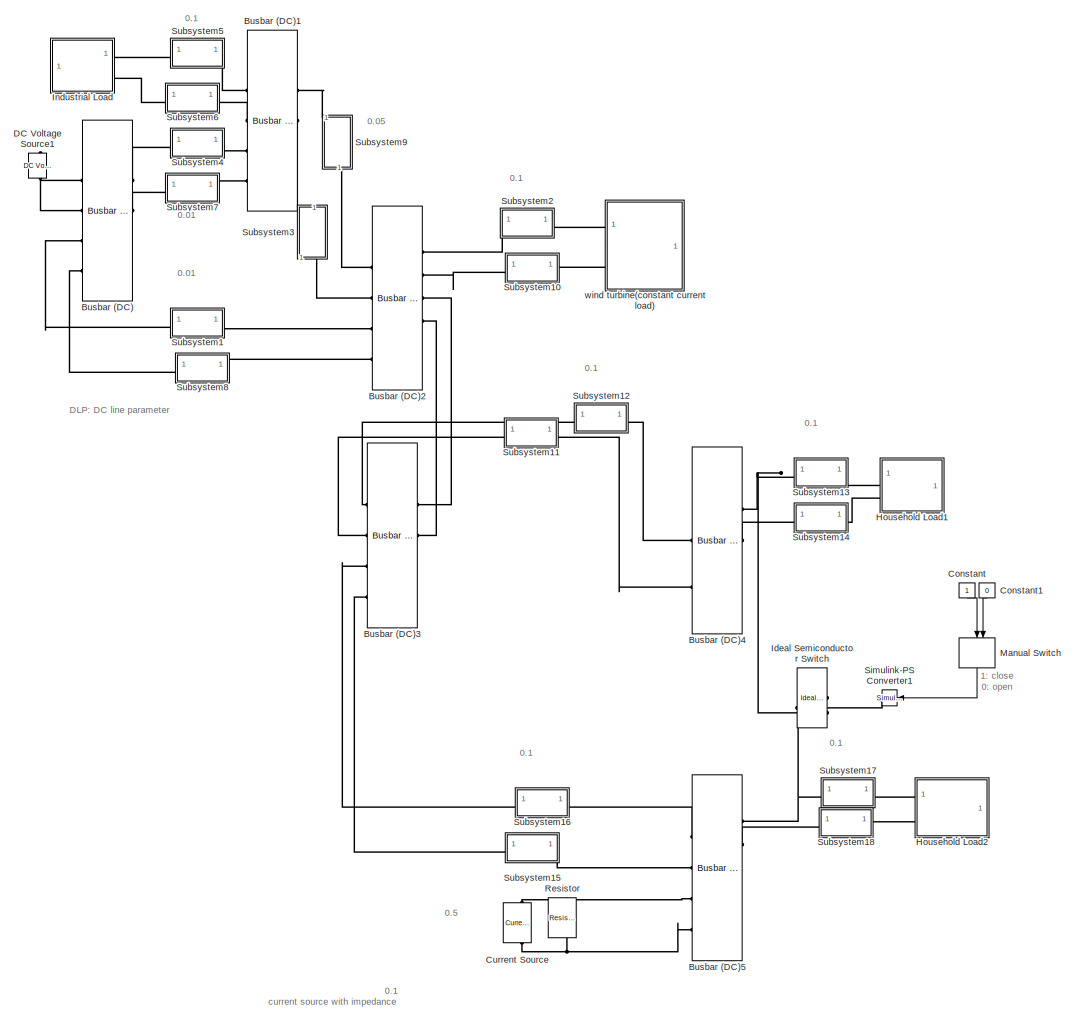
[diagram: root canvas - part 1/2, center side, full height]
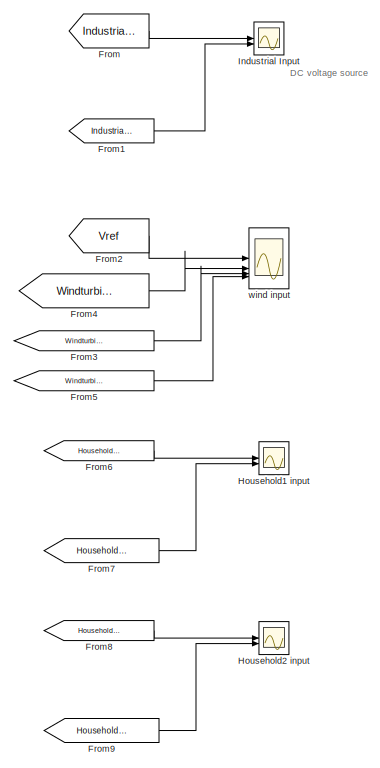
[diagram: root canvas - part 2/2, left side, full height]
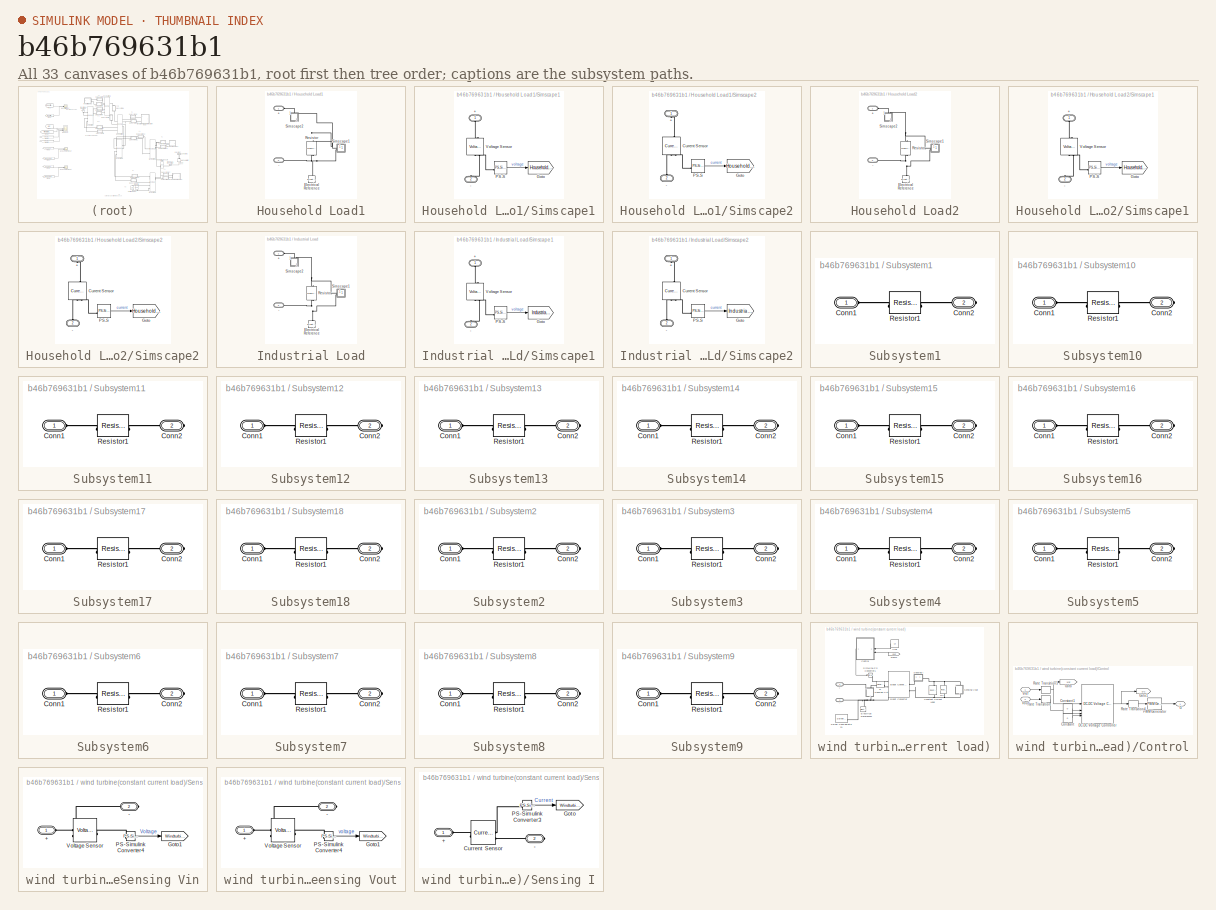
[diagram: thumbnail index - all 33 canvases of the model, root first then tree order]
MODEL slx_b46b769631b1
KIND model
CONFIG AbsTol = auto
CONFIG EnableMultiTasking = off
CONFIG FixedStep = auto
CONFIG MaxStep = auto
CONFIG MinStep = auto
CONFIG RelTol = 1e-3
CONFIG SampleTimeConstraint = Unconstrained
CONFIG SolverName = VariableStepAuto
CONFIG StartTime = 0.0
CONFIG StopTime = 10.0
BLOCK [Reference] Busbar (DC)  REF=ee_lib/Connectors &
References/Busbar (DC)
  SourceBlock = ee_lib/Connectors &\nReferences/Busbar (DC)
  SourceType = Busbar (DC)
BLOCK [Reference] Busbar (DC)1  REF=ee_lib/Connectors &
References/Busbar (DC)
  SourceBlock = ee_lib/Connectors &\nReferences/Busbar (DC)
  SourceType = Busbar (DC)
BLOCK [Reference] Busbar (DC)2  REF=ee_lib/Connectors &
References/Busbar (DC)
  SourceBlock = ee_lib/Connectors &\nReferences/Busbar (DC)
  SourceType = Busbar (DC)
BLOCK [Reference] Busbar (DC)3  REF=ee_lib/Connectors &
References/Busbar (DC)
  SourceBlock = ee_lib/Connectors &\nReferences/Busbar (DC)
  SourceType = Busbar (DC)
BLOCK [Reference] Busbar (DC)4  REF=ee_lib/Connectors &
References/Busbar (DC)
  SourceBlock = ee_lib/Connectors &\nReferences/Busbar (DC)
  SourceType = Busbar (DC)
BLOCK [Reference] Busbar (DC)5  REF=ee_lib/Connectors &
References/Busbar (DC)
  SourceBlock = ee_lib/Connectors &\nReferences/Busbar (DC)
  SourceType = Busbar (DC)
BLOCK [Constant] Constant
  NameLocation = left
BLOCK [Constant] Constant1
  NameLocation = left
  Value = 0
BLOCK [Reference] Current Source  REF=ee_lib/Sources/Current Source
  NameLocation = right
  SourceBlock = ee_lib/Sources/Current Source
  SourceType = Current Source
BLOCK [Reference] DC Voltage Source1  REF=ee_lib/Additional
Components/SPICE Sources/DC Voltage Source
  NameLocation = right
  SourceBlock = ee_lib/Additional\nComponents/SPICE Sources/DC Voltage Source
  SourceType = DC Voltage Source
BLOCK [From] From
  GotoTag = IndustrialVoltage
  IconDisplay = Signal name
  TagVisibility = global
BLOCK [From] From1
  GotoTag = IndustrialCurrent
  IconDisplay = Signal name
  TagVisibility = global
BLOCK [From] From2
  GotoTag = Vref
  IconDisplay = Signal name
  TagVisibility = global
BLOCK [From] From3
  GotoTag = WindturbineVoltage
  IconDisplay = Signal name
  TagVisibility = global
BLOCK [From] From4
  GotoTag = WindturbineInputVoltage
  IconDisplay = Signal name
  TagVisibility = global
BLOCK [From] From5
  GotoTag = WindturbineCurrent
  IconDisplay = Signal name
  TagVisibility = global
BLOCK [From] From6
  GotoTag = Household1Voltage
  IconDisplay = Signal name
  TagVisibility = global
BLOCK [From] From7
  GotoTag = Household1Current
  IconDisplay = Signal name
  TagVisibility = global
BLOCK [From] From8
  GotoTag = Household2Voltage
  IconDisplay = Signal name
  TagVisibility = global
BLOCK [From] From9
  GotoTag = Household2Current
  IconDisplay = Signal name
  TagVisibility = global
BLOCK [SubSystem] Household Load1
BLOCK [PMIOPort] Household Load1/+
  Side = Left
BLOCK [PMIOPort] Household Load1/-
  Port = 2
  Side = Left
BLOCK [Reference] Household Load1/Electrical Reference  REF=fl_lib/Electrical/Electrical Elements/Electrical Reference
  NameLocation = right
  SourceBlock = fl_lib/Electrical/Electrical Elements/Electrical Reference
  SourceType = Electrical Reference
BLOCK [Reference] Household Load1/Resistor  REF=fl_lib/Electrical/Electrical Elements/Resistor
  NameLocation = left
  SourceBlock = fl_lib/Electrical/Electrical Elements/Resistor
  SourceType = Resistor
BLOCK [SubSystem] Household Load1/Simscape1
BLOCK [PMIOPort] Household Load1/Simscape1/+
  NameLocation = right
  Side = Left
BLOCK [PMIOPort] Household Load1/Simscape1/-
  NameLocation = left
  Port = 2
  Side = Left
BLOCK [Goto] Household Load1/Simscape1/Goto
  GotoTag = Household1Voltage
  IconDisplay = Signal name
  TagVisibility = global
BLOCK [Reference] Household Load1/Simscape1/PS-S  REF=nesl_utility/PS-Simulink
Converter
  SourceBlock = nesl_utility/PS-Simulink\nConverter
  SourceType = PS-Simulink\nConverter
BLOCK [Reference] Household Load1/Simscape1/Voltage Sensor  REF=fl_lib/Electrical/Electrical Sensors/Voltage Sensor
  NameLocation = right
  SourceBlock = fl_lib/Electrical/Electrical Sensors/Voltage Sensor
  SourceType = Voltage Sensor
BLOCK [SubSystem] Household Load1/Simscape2
  NameLocation = left
BLOCK [PMIOPort] Household Load1/Simscape2/+
  NameLocation = right
  Side = Left
BLOCK [PMIOPort] Household Load1/Simscape2/-
  NameLocation = left
  Port = 2
  Side = Left
BLOCK [Reference] Household Load1/Simscape2/Current Sensor  REF=fl_lib/Electrical/Electrical Sensors/Current Sensor
  NameLocation = left
  SourceBlock = fl_lib/Electrical/Electrical Sensors/Current Sensor
  SourceType = Current Sensor
BLOCK [Goto] Household Load1/Simscape2/Goto
  GotoTag = Household1Current
  IconDisplay = Signal name
  TagVisibility = global
BLOCK [Reference] Household Load1/Simscape2/PS-S  REF=nesl_utility/PS-Simulink
Converter
  SourceBlock = nesl_utility/PS-Simulink\nConverter
  SourceType = PS-Simulink\nConverter
BLOCK [SubSystem] Household Load2
BLOCK [PMIOPort] Household Load2/+
  Side = Left
BLOCK [PMIOPort] Household Load2/-
  Port = 2
  Side = Left
BLOCK [Reference] Household Load2/Electrical Reference  REF=fl_lib/Electrical/Electrical Elements/Electrical Reference
  NameLocation = right
  SourceBlock = fl_lib/Electrical/Electrical Elements/Electrical Reference
  SourceType = Electrical Reference
BLOCK [Reference] Household Load2/Resistor  REF=fl_lib/Electrical/Electrical Elements/Resistor
  NameLocation = left
  SourceBlock = fl_lib/Electrical/Electrical Elements/Resistor
  SourceType = Resistor
BLOCK [SubSystem] Household Load2/Simscape1
BLOCK [PMIOPort] Household Load2/Simscape1/+
  NameLocation = right
  Side = Left
BLOCK [PMIOPort] Household Load2/Simscape1/-
  NameLocation = left
  Port = 2
  Side = Left
BLOCK [Goto] Household Load2/Simscape1/Goto
  GotoTag = Household2Voltage
  IconDisplay = Signal name
  TagVisibility = global
BLOCK [Reference] Household Load2/Simscape1/PS-S  REF=nesl_utility/PS-Simulink
Converter
  SourceBlock = nesl_utility/PS-Simulink\nConverter
  SourceType = PS-Simulink\nConverter
BLOCK [Reference] Household Load2/Simscape1/Voltage Sensor  REF=fl_lib/Electrical/Electrical Sensors/Voltage Sensor
  NameLocation = right
  SourceBlock = fl_lib/Electrical/Electrical Sensors/Voltage Sensor
  SourceType = Voltage Sensor
BLOCK [SubSystem] Household Load2/Simscape2
  NameLocation = left
BLOCK [PMIOPort] Household Load2/Simscape2/+
  NameLocation = right
  Side = Left
BLOCK [PMIOPort] Household Load2/Simscape2/-
  NameLocation = left
  Port = 2
  Side = Left
BLOCK [Reference] Household Load2/Simscape2/Current Sensor  REF=fl_lib/Electrical/Electrical Sensors/Current Sensor
  NameLocation = left
  SourceBlock = fl_lib/Electrical/Electrical Sensors/Current Sensor
  SourceType = Current Sensor
BLOCK [Goto] Household Load2/Simscape2/Goto
  GotoTag = Household2Current
  IconDisplay = Signal name
  TagVisibility = global
BLOCK [Reference] Household Load2/Simscape2/PS-S  REF=nesl_utility/PS-Simulink
Converter
  SourceBlock = nesl_utility/PS-Simulink\nConverter
  SourceType = PS-Simulink\nConverter
BLOCK [Scope] Household1 input
  Floating = off
  NumInputPorts = 2
  ScopeSpecificationString = Simulink.scopes.TimeScopeBlockCfg('CurrentConfiguration', extmgr.ConfigurationSet(extmgr.Configuration('Core','General UI',true,'FigureColor',[0.501960784313725 0.501960784313725 0.501960784313725]),extmgr.Configuration('Core','Source UI',true),extmgr.Configuration('Sources','WiredSimulink',true,'DataLoggingSaveFormat','Array','DataLoggingLimitDataPoints',true,'DataLoggingDecimation','1','DataLogg...<+2646ch>  <repeated x3 — deduplicated; at blocks: Household1 input, Household2 input, wind input>
  Tag = PublishScope
BLOCK [Scope] Household2 input
  Floating = off
  NumInputPorts = 2
  Tag = PublishScope
BLOCK [Reference] Ideal Semiconductor Switch  REF=ee_lib/Semiconductors &
Converters/Ideal Semiconductor
Switch
  NameLocation = top
  SourceBlock = ee_lib/Semiconductors &\nConverters/Ideal Semiconductor\nSwitch
  SourceType = Ideal Semiconductor\nSwitch
BLOCK [Scope] Industrial Input
  Floating = off
  NumInputPorts = 2
  ScopeSpecificationString = Simulink.scopes.TimeScopeBlockCfg('CurrentConfiguration', extmgr.ConfigurationSet(extmgr.Configuration('Core','General UI',true,'FigureColor',[0.501960784313725 0.501960784313725 0.501960784313725]),extmgr.Configuration('Core','Source UI',true),extmgr.Configuration('Sources','WiredSimulink',true,'DataLoggingSaveFormat','Array','DataLoggingLimitDataPoints',true,'DataLoggingDecimation','1'),extmgr.C...<+2607ch>
  Tag = PublishScope
BLOCK [SubSystem] Industrial Load
BLOCK [PMIOPort] Industrial Load/+
  Side = Left
BLOCK [PMIOPort] Industrial Load/-
  Port = 2
  Side = Left
BLOCK [Reference] Industrial Load/Electrical Reference  REF=fl_lib/Electrical/Electrical Elements/Electrical Reference
  NameLocation = right
  SourceBlock = fl_lib/Electrical/Electrical Elements/Electrical Reference
  SourceType = Electrical Reference
BLOCK [Reference] Industrial Load/Resistor  REF=fl_lib/Electrical/Electrical Elements/Resistor
  NameLocation = left
  SourceBlock = fl_lib/Electrical/Electrical Elements/Resistor
  SourceType = Resistor
BLOCK [SubSystem] Industrial Load/Simscape1
BLOCK [PMIOPort] Industrial Load/Simscape1/+
  NameLocation = right
  Side = Left
BLOCK [PMIOPort] Industrial Load/Simscape1/-
  NameLocation = left
  Port = 2
  Side = Left
BLOCK [Goto] Industrial Load/Simscape1/Goto
  GotoTag = IndustrialVoltage
  IconDisplay = Signal name
  TagVisibility = global
BLOCK [Reference] Industrial Load/Simscape1/PS-S  REF=nesl_utility/PS-Simulink
Converter
  SourceBlock = nesl_utility/PS-Simulink\nConverter
  SourceType = PS-Simulink\nConverter
BLOCK [Reference] Industrial Load/Simscape1/Voltage Sensor  REF=fl_lib/Electrical/Electrical Sensors/Voltage Sensor
  NameLocation = right
  SourceBlock = fl_lib/Electrical/Electrical Sensors/Voltage Sensor
  SourceType = Voltage Sensor
BLOCK [SubSystem] Industrial Load/Simscape2
  NameLocation = left
BLOCK [PMIOPort] Industrial Load/Simscape2/+
  NameLocation = right
  Side = Left
BLOCK [PMIOPort] Industrial Load/Simscape2/-
  NameLocation = left
  Port = 2
  Side = Left
BLOCK [Reference] Industrial Load/Simscape2/Current Sensor  REF=fl_lib/Electrical/Electrical Sensors/Current Sensor
  NameLocation = left
  SourceBlock = fl_lib/Electrical/Electrical Sensors/Current Sensor
  SourceType = Current Sensor
BLOCK [Goto] Industrial Load/Simscape2/Goto
  GotoTag = IndustrialCurrent
  IconDisplay = Signal name
  TagVisibility = global
BLOCK [Reference] Industrial Load/Simscape2/PS-S  REF=nesl_utility/PS-Simulink
Converter
  SourceBlock = nesl_utility/PS-Simulink\nConverter
  SourceType = PS-Simulink\nConverter
BLOCK [ManualSwitch] Manual Switch
  CurrentSetting = 0
  NameLocation = left
BLOCK [Reference] Resistor  REF=ee_lib/Passive/Resistor
  NameLocation = left
  SourceBlock = ee_lib/Passive/Resistor
  SourceType = Resistor
BLOCK [Reference] Simulink-PS Converter1  REF=nesl_utility/Simulink-PS
Converter
  NameLocation = top
  SourceBlock = nesl_utility/Simulink-PS\nConverter
  SourceType = Simulink-PS\nConverter
BLOCK [SubSystem] Subsystem1
  NameLocation = top
BLOCK [PMIOPort] Subsystem1/Conn1
  Side = Left
BLOCK [PMIOPort] Subsystem1/Conn2
  Port = 2
  Side = Right
BLOCK [Reference] Subsystem1/Resistor1  REF=fl_lib/Electrical/Electrical Elements/Resistor
  SourceBlock = fl_lib/Electrical/Electrical Elements/Resistor
  SourceType = Resistor
BLOCK [SubSystem] Subsystem10
BLOCK [PMIOPort] Subsystem10/Conn1
  Side = Left
BLOCK [PMIOPort] Subsystem10/Conn2
  Port = 2
  Side = Right
BLOCK [Reference] Subsystem10/Resistor1  REF=fl_lib/Electrical/Electrical Elements/Resistor
  SourceBlock = fl_lib/Electrical/Electrical Elements/Resistor
  SourceType = Resistor
BLOCK [SubSystem] Subsystem11
BLOCK [PMIOPort] Subsystem11/Conn1
  Side = Left
BLOCK [PMIOPort] Subsystem11/Conn2
  Port = 2
  Side = Right
BLOCK [Reference] Subsystem11/Resistor1  REF=fl_lib/Electrical/Electrical Elements/Resistor
  SourceBlock = fl_lib/Electrical/Electrical Elements/Resistor
  SourceType = Resistor
BLOCK [SubSystem] Subsystem12
  NameLocation = top
BLOCK [PMIOPort] Subsystem12/Conn1
  Side = Left
BLOCK [PMIOPort] Subsystem12/Conn2
  Port = 2
  Side = Right
BLOCK [Reference] Subsystem12/Resistor1  REF=fl_lib/Electrical/Electrical Elements/Resistor
  SourceBlock = fl_lib/Electrical/Electrical Elements/Resistor
  SourceType = Resistor
BLOCK [SubSystem] Subsystem13
  NameLocation = top
BLOCK [PMIOPort] Subsystem13/Conn1
  Side = Left
BLOCK [PMIOPort] Subsystem13/Conn2
  Port = 2
  Side = Right
BLOCK [Reference] Subsystem13/Resistor1  REF=fl_lib/Electrical/Electrical Elements/Resistor
  SourceBlock = fl_lib/Electrical/Electrical Elements/Resistor
  SourceType = Resistor
BLOCK [SubSystem] Subsystem14
BLOCK [PMIOPort] Subsystem14/Conn1
  Side = Left
BLOCK [PMIOPort] Subsystem14/Conn2
  Port = 2
  Side = Right
BLOCK [Reference] Subsystem14/Resistor1  REF=fl_lib/Electrical/Electrical Elements/Resistor
  SourceBlock = fl_lib/Electrical/Electrical Elements/Resistor
  SourceType = Resistor
BLOCK [SubSystem] Subsystem15
BLOCK [PMIOPort] Subsystem15/Conn1
  Side = Left
BLOCK [PMIOPort] Subsystem15/Conn2
  Port = 2
  Side = Right
BLOCK [Reference] Subsystem15/Resistor1  REF=fl_lib/Electrical/Electrical Elements/Resistor
  SourceBlock = fl_lib/Electrical/Electrical Elements/Resistor
  SourceType = Resistor
BLOCK [SubSystem] Subsystem16
  NameLocation = top
BLOCK [PMIOPort] Subsystem16/Conn1
  Side = Left
BLOCK [PMIOPort] Subsystem16/Conn2
  Port = 2
  Side = Right
BLOCK [Reference] Subsystem16/Resistor1  REF=fl_lib/Electrical/Electrical Elements/Resistor
  SourceBlock = fl_lib/Electrical/Electrical Elements/Resistor
  SourceType = Resistor
BLOCK [SubSystem] Subsystem17
  NameLocation = top
BLOCK [PMIOPort] Subsystem17/Conn1
  Side = Left
BLOCK [PMIOPort] Subsystem17/Conn2
  Port = 2
  Side = Right
BLOCK [Reference] Subsystem17/Resistor1  REF=fl_lib/Electrical/Electrical Elements/Resistor
  SourceBlock = fl_lib/Electrical/Electrical Elements/Resistor
  SourceType = Resistor
BLOCK [SubSystem] Subsystem18
BLOCK [PMIOPort] Subsystem18/Conn1
  Side = Left
BLOCK [PMIOPort] Subsystem18/Conn2
  Port = 2
  Side = Right
BLOCK [Reference] Subsystem18/Resistor1  REF=fl_lib/Electrical/Electrical Elements/Resistor
  SourceBlock = fl_lib/Electrical/Electrical Elements/Resistor
  SourceType = Resistor
BLOCK [SubSystem] Subsystem2
  NameLocation = top
BLOCK [PMIOPort] Subsystem2/Conn1
  Side = Left
BLOCK [PMIOPort] Subsystem2/Conn2
  Port = 2
  Side = Right
BLOCK [Reference] Subsystem2/Resistor1  REF=fl_lib/Electrical/Electrical Elements/Resistor
  SourceBlock = fl_lib/Electrical/Electrical Elements/Resistor
  SourceType = Resistor
BLOCK [SubSystem] Subsystem3
  NameLocation = left
BLOCK [PMIOPort] Subsystem3/Conn1
  Side = Left
BLOCK [PMIOPort] Subsystem3/Conn2
  Port = 2
  Side = Right
BLOCK [Reference] Subsystem3/Resistor1  REF=fl_lib/Electrical/Electrical Elements/Resistor
  SourceBlock = fl_lib/Electrical/Electrical Elements/Resistor
  SourceType = Resistor
BLOCK [SubSystem] Subsystem4
  NameLocation = top
BLOCK [PMIOPort] Subsystem4/Conn1
  Side = Left
BLOCK [PMIOPort] Subsystem4/Conn2
  Port = 2
  Side = Right
BLOCK [Reference] Subsystem4/Resistor1  REF=fl_lib/Electrical/Electrical Elements/Resistor
  SourceBlock = fl_lib/Electrical/Electrical Elements/Resistor
  SourceType = Resistor
BLOCK [SubSystem] Subsystem5
BLOCK [PMIOPort] Subsystem5/Conn1
  Side = Left
BLOCK [PMIOPort] Subsystem5/Conn2
  Port = 2
  Side = Right
BLOCK [Reference] Subsystem5/Resistor1  REF=fl_lib/Electrical/Electrical Elements/Resistor
  SourceBlock = fl_lib/Electrical/Electrical Elements/Resistor
  SourceType = Resistor
BLOCK [SubSystem] Subsystem6
  NameLocation = top
BLOCK [PMIOPort] Subsystem6/Conn1
  Side = Left
BLOCK [PMIOPort] Subsystem6/Conn2
  Port = 2
  Side = Right
BLOCK [Reference] Subsystem6/Resistor1  REF=fl_lib/Electrical/Electrical Elements/Resistor
  SourceBlock = fl_lib/Electrical/Electrical Elements/Resistor
  SourceType = Resistor
BLOCK [SubSystem] Subsystem7
BLOCK [PMIOPort] Subsystem7/Conn1
  Side = Left
BLOCK [PMIOPort] Subsystem7/Conn2
  Port = 2
  Side = Right
BLOCK [Reference] Subsystem7/Resistor1  REF=fl_lib/Electrical/Electrical Elements/Resistor
  SourceBlock = fl_lib/Electrical/Electrical Elements/Resistor
  SourceType = Resistor
BLOCK [SubSystem] Subsystem8
BLOCK [PMIOPort] Subsystem8/Conn1
  Side = Left
BLOCK [PMIOPort] Subsystem8/Conn2
  Port = 2
  Side = Right
BLOCK [Reference] Subsystem8/Resistor1  REF=fl_lib/Electrical/Electrical Elements/Resistor
  SourceBlock = fl_lib/Electrical/Electrical Elements/Resistor
  SourceType = Resistor
BLOCK [SubSystem] Subsystem9
  NameLocation = right
BLOCK [PMIOPort] Subsystem9/Conn1
  Side = Left
BLOCK [PMIOPort] Subsystem9/Conn2
  Port = 2
  Side = Right
BLOCK [Reference] Subsystem9/Resistor1  REF=fl_lib/Electrical/Electrical Elements/Resistor
  SourceBlock = fl_lib/Electrical/Electrical Elements/Resistor
  SourceType = Resistor
BLOCK [Scope] wind input
  Floating = off
  NumInputPorts = 4
  Tag = PublishScope
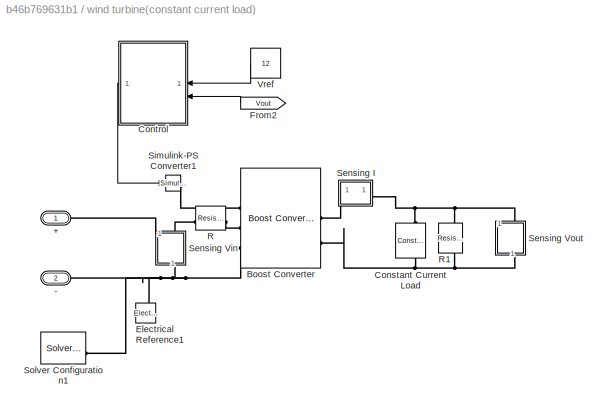
BLOCK [SubSystem] wind turbine(constant current load)
BLOCK [PMIOPort] wind turbine(constant current load)/+
  Side = Left
BLOCK [PMIOPort] wind turbine(constant current load)/-
  Port = 2
  Side = Left
BLOCK [Reference] wind turbine(constant current load)/Boost Converter  REF=ee_lib/Semiconductors &
Converters/Converters/Boost Converter
  SourceBlock = ee_lib/Semiconductors &\nConverters/Converters/Boost Converter
  SourceType = Boost Converter
BLOCK [Reference] wind turbine(constant current load)/Constant Current Load   REF=ee_lib/Passive/Constant Current
Load
  NameLocation = left
  SourceBlock = ee_lib/Passive/Constant Current\nLoad
  SourceType = Constant Current\nLoad
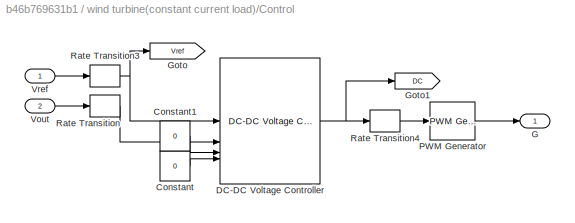
BLOCK [SubSystem] wind turbine(constant current load)/Control
  NameLocation = top
BLOCK [Constant] wind turbine(constant current load)/Control/Constant
  Value = 0
BLOCK [Constant] wind turbine(constant current load)/Control/Constant1
  Value = 0
BLOCK [Reference] wind turbine(constant current load)/Control/DC-DC Voltage Controller  REF=eeDcDcVoltageController/DC-DC Voltage Controller
  SourceBlock = eeDcDcVoltageController/DC-DC Voltage Controller
  SourceType = DC-DC Voltage Controller
BLOCK [Outport] wind turbine(constant current load)/Control/G
  VectorParamsAs1DForOutWhenUnconnected = off
BLOCK [Goto] wind turbine(constant current load)/Control/Goto
  GotoTag = Vref
  TagVisibility = global
BLOCK [Goto] wind turbine(constant current load)/Control/Goto1
  GotoTag = DC
  TagVisibility = global
BLOCK [Reference] wind turbine(constant current load)/Control/PWM Generator  REF=eePwmGenerator/PWM Generator
  SourceBlock = eePwmGenerator/PWM Generator
  SourceType = PWM Generator
BLOCK [RateTransition] wind turbine(constant current load)/Control/Rate Transition
  OutPortSampleTime = 1e-4
BLOCK [RateTransition] wind turbine(constant current load)/Control/Rate Transition3
  OutPortSampleTime = 1e-4
BLOCK [RateTransition] wind turbine(constant current load)/Control/Rate Transition4
  OutPortSampleTime = 5e-6
BLOCK [Inport] wind turbine(constant current load)/Control/Vout
  Port = 2
BLOCK [Inport] wind turbine(constant current load)/Control/Vref
BLOCK [Reference] wind turbine(constant current load)/Electrical Reference1  REF=fl_lib/Electrical/Electrical Elements/Electrical Reference
  NameLocation = right
  SourceBlock = fl_lib/Electrical/Electrical Elements/Electrical Reference
  SourceType = Electrical Reference
BLOCK [From] wind turbine(constant current load)/From2
  GotoTag = Vout
  NameLocation = top
  TagVisibility = global
BLOCK [Reference] wind turbine(constant current load)/R  REF=fl_lib/Electrical/Electrical Elements/Resistor
  SourceBlock = fl_lib/Electrical/Electrical Elements/Resistor
  SourceType = Resistor
BLOCK [Reference] wind turbine(constant current load)/R1  REF=fl_lib/Electrical/Electrical Elements/Resistor
  NameLocation = left
  SourceBlock = fl_lib/Electrical/Electrical Elements/Resistor
  SourceType = Resistor
BLOCK [SubSystem] wind turbine(constant current load)/Sensing I
BLOCK [PMIOPort] wind turbine(constant current load)/Sensing I/+
  Side = Left
BLOCK [PMIOPort] wind turbine(constant current load)/Sensing I/-
  Port = 2
  Side = Right
BLOCK [Reference] wind turbine(constant current load)/Sensing I/Current Sensor  REF=fl_lib/Electrical/Electrical Sensors/Current Sensor
  SourceBlock = fl_lib/Electrical/Electrical Sensors/Current Sensor
  SourceType = Current Sensor
BLOCK [Goto] wind turbine(constant current load)/Sensing I/Goto
  GotoTag = WindturbineCurrent
  IconDisplay = Signal name
  TagVisibility = global
BLOCK [Reference] wind turbine(constant current load)/Sensing I/PS-Simulink Converter3  REF=nesl_utility/PS-Simulink
Converter
  SourceBlock = nesl_utility/PS-Simulink\nConverter
  SourceType = PS-Simulink\nConverter
BLOCK [SubSystem] wind turbine(constant current load)/Sensing Vin
  NameLocation = right
BLOCK [PMIOPort] wind turbine(constant current load)/Sensing Vin/+
  Side = Left
BLOCK [PMIOPort] wind turbine(constant current load)/Sensing Vin/-
  Port = 2
  Side = Right
BLOCK [Goto] wind turbine(constant current load)/Sensing Vin/Goto1
  GotoTag = WindturbineInputVoltage
  IconDisplay = Signal name
  TagVisibility = global
BLOCK [Reference] wind turbine(constant current load)/Sensing Vin/PS-Simulink Converter4  REF=nesl_utility/PS-Simulink
Converter
  SourceBlock = nesl_utility/PS-Simulink\nConverter
  SourceType = PS-Simulink\nConverter
BLOCK [Reference] wind turbine(constant current load)/Sensing Vin/Voltage Sensor  REF=fl_lib/Electrical/Electrical Sensors/Voltage Sensor
  SourceBlock = fl_lib/Electrical/Electrical Sensors/Voltage Sensor
  SourceType = Voltage Sensor
BLOCK [SubSystem] wind turbine(constant current load)/Sensing Vout
  NameLocation = right
BLOCK [PMIOPort] wind turbine(constant current load)/Sensing Vout/+
  Side = Left
BLOCK [PMIOPort] wind turbine(constant current load)/Sensing Vout/-
  Port = 2
  Side = Right
BLOCK [Goto] wind turbine(constant current load)/Sensing Vout/Goto1
  GotoTag = WindturbineVoltage
  IconDisplay = Signal name
  TagVisibility = global
BLOCK [Reference] wind turbine(constant current load)/Sensing Vout/PS-Simulink Converter4  REF=nesl_utility/PS-Simulink
Converter
  SourceBlock = nesl_utility/PS-Simulink\nConverter
  SourceType = PS-Simulink\nConverter
BLOCK [Reference] wind turbine(constant current load)/Sensing Vout/Voltage Sensor  REF=fl_lib/Electrical/Electrical Sensors/Voltage Sensor
  SourceBlock = fl_lib/Electrical/Electrical Sensors/Voltage Sensor
  SourceType = Voltage Sensor
BLOCK [Reference] wind turbine(constant current load)/Simulink-PS Converter1  REF=nesl_utility/Simulink-PS
Converter
  SourceBlock = nesl_utility/Simulink-PS\nConverter
  SourceType = Simulink-PS\nConverter
BLOCK [Reference] wind turbine(constant current load)/Solver Configuration1  REF=nesl_utility/Solver
Configuration
  SourceBlock = nesl_utility/Solver\nConfiguration
  SourceType = Solver\nConfiguration
BLOCK [Constant] wind turbine(constant current load)/Vref
  NameLocation = top
  SampleTime = 5e-6
  Value = 12
ANNOTATION (root): 0.01
ANNOTATION (root): 0.05
ANNOTATION (root): 0.1
ANNOTATION (root): 0.5
ANNOTATION (root): 1: close 0: open
ANNOTATION (root): DC voltage source
ANNOTATION (root): DLP: DC line parameter
ANNOTATION (root): current source with impedance
LINE Constant1:1 -> Manual Switch:2
LINE Constant:1 -> Manual Switch:1
LINE From1:1 -> Industrial Input:2
LINE From2:1 -> wind input:1
LINE From3:1 -> wind input:3
LINE From4:1 -> wind input:2
LINE From5:1 -> wind input:4
LINE From6:1 -> Household1 input:1
LINE From7:1 -> Household1 input:2
LINE From8:1 -> Household2 input:1
LINE From9:1 -> Household2 input:2
LINE From:1 -> Industrial Input:1
LINE Household Load1/Simscape1/PS-S:1 -> Household Load1/Simscape1/Goto:1
LINE Household Load1/Simscape2/PS-S:1 -> Household Load1/Simscape2/Goto:1
LINE Household Load2/Simscape1/PS-S:1 -> Household Load2/Simscape1/Goto:1
LINE Household Load2/Simscape2/PS-S:1 -> Household Load2/Simscape2/Goto:1
LINE Industrial Load/Simscape1/PS-S:1 -> Industrial Load/Simscape1/Goto:1
LINE Industrial Load/Simscape2/PS-S:1 -> Industrial Load/Simscape2/Goto:1
LINE Manual Switch:1 -> Simulink-PS Converter1:1
LINE wind turbine(constant current load)/Control/Constant1:1 -> wind turbine(constant current load)/Control/DC-DC Voltage Controller:3
LINE wind turbine(constant current load)/Control/Constant:1 -> wind turbine(constant current load)/Control/DC-DC Voltage Controller:4
NET wind turbine(constant current load)/Control/DC-DC Voltage Controller:1 -> wind turbine(constant current load)/Control/Goto1:1, wind turbine(constant current load)/Control/Rate Transition4:1
LINE wind turbine(constant current load)/Control/PWM Generator:1 -> wind turbine(constant current load)/Control/G:1
NET wind turbine(constant current load)/Control/Rate Transition3:1 -> wind turbine(constant current load)/Control/DC-DC Voltage Controller:1, wind turbine(constant current load)/Control/Goto:1
LINE wind turbine(constant current load)/Control/Rate Transition4:1 -> wind turbine(constant current load)/Control/PWM Generator:1
LINE wind turbine(constant current load)/Control/Rate Transition:1 -> wind turbine(constant current load)/Control/DC-DC Voltage Controller:2
LINE wind turbine(constant current load)/Control/Vout:1 -> wind turbine(constant current load)/Control/Rate Transition:1
LINE wind turbine(constant current load)/Control/Vref:1 -> wind turbine(constant current load)/Control/Rate Transition3:1
LINE wind turbine(constant current load)/Control:1 -> wind turbine(constant current load)/Simulink-PS Converter1:1
LINE wind turbine(constant current load)/From2:1 -> wind turbine(constant current load)/Control:2
LINE wind turbine(constant current load)/Sensing I/PS-Simulink Converter3:1 -> wind turbine(constant current load)/Sensing I/Goto:1
LINE wind turbine(constant current load)/Sensing Vin/PS-Simulink Converter4:1 -> wind turbine(constant current load)/Sensing Vin/Goto1:1
LINE wind turbine(constant current load)/Sensing Vout/PS-Simulink Converter4:1 -> wind turbine(constant current load)/Sensing Vout/Goto1:1
LINE wind turbine(constant current load)/Vref:1 -> wind turbine(constant current load)/Control:1
PLINE Busbar (DC)1:LConn1 -- Subsystem5:LConn1
PLINE Busbar (DC)1:LConn2 -- Subsystem6:RConn1
PLINE Busbar (DC)1:LConn3 -- Subsystem4:RConn1
PLINE Busbar (DC)1:LConn4 -- Subsystem7:LConn1
PLINE Busbar (DC)1:RConn1 -- Subsystem9:LConn1
PLINE Busbar (DC)1:RConn2 -- Subsystem3:RConn1
PLINE Busbar (DC)2:LConn1 -- Subsystem9:RConn1
PLINE Busbar (DC)2:LConn2 -- Subsystem3:LConn1
PLINE Busbar (DC)2:LConn3 -- Subsystem1:RConn1
PLINE Busbar (DC)2:LConn4 -- Subsystem8:LConn1
PLINE Busbar (DC)2:RConn1 -- Subsystem2:LConn1
PLINE Busbar (DC)2:RConn2 -- Subsystem10:RConn1
PLINE Busbar (DC)2:RConn3 -- Busbar (DC)3:RConn1
PLINE Busbar (DC)2:RConn4 -- Busbar (DC)3:RConn2
PLINE Busbar (DC)3:LConn1 -- Subsystem12:LConn1
PLINE Busbar (DC)3:LConn2 -- Subsystem11:RConn1
PLINE Busbar (DC)3:LConn3 -- Subsystem16:LConn1
PLINE Busbar (DC)3:LConn4 -- Subsystem15:RConn1
PLINE Busbar (DC)4:LConn1 -- Subsystem12:RConn1
PLINE Busbar (DC)4:LConn2 -- Subsystem11:LConn1
PNET net1: Busbar (DC)4:RConn1 -- Ideal Semiconductor Switch:RConn2 -- Subsystem13:LConn1
PLINE Busbar (DC)4:RConn2 -- Subsystem14:RConn1
PLINE Busbar (DC)5:LConn1 -- Subsystem16:RConn1
PLINE Busbar (DC)5:LConn2 -- Subsystem15:LConn1
PNET net2: Busbar (DC)5:LConn3 -- Current Source:LConn1 -- Resistor:LConn1
PNET net3: Busbar (DC)5:LConn4 -- Current Source:RConn1 -- Resistor:RConn1
PNET net4: Busbar (DC)5:RConn1 -- Ideal Semiconductor Switch:RConn1 -- Subsystem17:LConn1
PLINE Busbar (DC)5:RConn2 -- Subsystem18:RConn1
PLINE Busbar (DC):LConn1 -- DC Voltage Source1:LConn1
PLINE Busbar (DC):LConn2 -- DC Voltage Source1:RConn1
PLINE Busbar (DC):LConn3 -- Subsystem1:LConn1
PLINE Busbar (DC):LConn4 -- Subsystem8:RConn1
PLINE Busbar (DC):RConn1 -- Subsystem4:LConn1
PLINE Busbar (DC):RConn2 -- Subsystem7:RConn1
PLINE Household Load1/+:RConn1 -- Household Load1/Simscape2:LConn1
PNET net5: Household Load1/-:RConn1 -- Household Load1/Electrical Reference:LConn1 -- Household Load1/Resistor:RConn1 -- Household Load1/Simscape1:LConn2
PNET net6: Household Load1/Resistor:LConn1 -- Household Load1/Simscape1:LConn1 -- Household Load1/Simscape2:LConn2
PLINE Household Load1/Simscape1/+:RConn1 -- Household Load1/Simscape1/Voltage Sensor:LConn1
PLINE Household Load1/Simscape1/-:RConn1 -- Household Load1/Simscape1/Voltage Sensor:RConn2
PLINE Household Load1/Simscape1/PS-S:LConn1 -- Household Load1/Simscape1/Voltage Sensor:RConn1
PLINE Household Load1/Simscape2/+:RConn1 -- Household Load1/Simscape2/Current Sensor:LConn1
PLINE Household Load1/Simscape2/-:RConn1 -- Household Load1/Simscape2/Current Sensor:RConn2
PLINE Household Load1/Simscape2/Current Sensor:RConn1 -- Household Load1/Simscape2/PS-S:LConn1
PLINE Household Load1:LConn1 -- Subsystem13:RConn1
PLINE Household Load1:LConn2 -- Subsystem14:LConn1
PLINE Household Load2/+:RConn1 -- Household Load2/Simscape2:LConn1
PNET net7: Household Load2/-:RConn1 -- Household Load2/Electrical Reference:LConn1 -- Household Load2/Resistor:RConn1 -- Household Load2/Simscape1:LConn2
PNET net8: Household Load2/Resistor:LConn1 -- Household Load2/Simscape1:LConn1 -- Household Load2/Simscape2:LConn2
PLINE Household Load2/Simscape1/+:RConn1 -- Household Load2/Simscape1/Voltage Sensor:LConn1
PLINE Household Load2/Simscape1/-:RConn1 -- Household Load2/Simscape1/Voltage Sensor:RConn2
PLINE Household Load2/Simscape1/PS-S:LConn1 -- Household Load2/Simscape1/Voltage Sensor:RConn1
PLINE Household Load2/Simscape2/+:RConn1 -- Household Load2/Simscape2/Current Sensor:LConn1
PLINE Household Load2/Simscape2/-:RConn1 -- Household Load2/Simscape2/Current Sensor:RConn2
PLINE Household Load2/Simscape2/Current Sensor:RConn1 -- Household Load2/Simscape2/PS-S:LConn1
PLINE Household Load2:LConn1 -- Subsystem17:RConn1
PLINE Household Load2:LConn2 -- Subsystem18:LConn1
PLINE Ideal Semiconductor Switch:LConn1 -- Simulink-PS Converter1:RConn1
PLINE Industrial Load/+:RConn1 -- Industrial Load/Simscape2:LConn1
PNET net9: Industrial Load/-:RConn1 -- Industrial Load/Electrical Reference:LConn1 -- Industrial Load/Resistor:RConn1 -- Industrial Load/Simscape1:LConn2
PNET net10: Industrial Load/Resistor:LConn1 -- Industrial Load/Simscape1:LConn1 -- Industrial Load/Simscape2:LConn2
PLINE Industrial Load/Simscape1/+:RConn1 -- Industrial Load/Simscape1/Voltage Sensor:LConn1
PLINE Industrial Load/Simscape1/-:RConn1 -- Industrial Load/Simscape1/Voltage Sensor:RConn2
PLINE Industrial Load/Simscape1/PS-S:LConn1 -- Industrial Load/Simscape1/Voltage Sensor:RConn1
PLINE Industrial Load/Simscape2/+:RConn1 -- Industrial Load/Simscape2/Current Sensor:LConn1
PLINE Industrial Load/Simscape2/-:RConn1 -- Industrial Load/Simscape2/Current Sensor:RConn2
PLINE Industrial Load/Simscape2/Current Sensor:RConn1 -- Industrial Load/Simscape2/PS-S:LConn1
PLINE Industrial Load:LConn1 -- Subsystem5:RConn1
PLINE Industrial Load:LConn2 -- Subsystem6:LConn1
PLINE Subsystem1/Conn1:RConn1 -- Subsystem1/Resistor1:LConn1
PLINE Subsystem1/Conn2:RConn1 -- Subsystem1/Resistor1:RConn1
PLINE Subsystem10/Conn1:RConn1 -- Subsystem10/Resistor1:LConn1
PLINE Subsystem10/Conn2:RConn1 -- Subsystem10/Resistor1:RConn1
PLINE Subsystem10:LConn1 -- wind turbine(constant current load):LConn2
PLINE Subsystem11/Conn1:RConn1 -- Subsystem11/Resistor1:LConn1
PLINE Subsystem11/Conn2:RConn1 -- Subsystem11/Resistor1:RConn1
PLINE Subsystem12/Conn1:RConn1 -- Subsystem12/Resistor1:LConn1
PLINE Subsystem12/Conn2:RConn1 -- Subsystem12/Resistor1:RConn1
PLINE Subsystem13/Conn1:RConn1 -- Subsystem13/Resistor1:LConn1
PLINE Subsystem13/Conn2:RConn1 -- Subsystem13/Resistor1:RConn1
PLINE Subsystem14/Conn1:RConn1 -- Subsystem14/Resistor1:LConn1
PLINE Subsystem14/Conn2:RConn1 -- Subsystem14/Resistor1:RConn1
PLINE Subsystem15/Conn1:RConn1 -- Subsystem15/Resistor1:LConn1
PLINE Subsystem15/Conn2:RConn1 -- Subsystem15/Resistor1:RConn1
PLINE Subsystem16/Conn1:RConn1 -- Subsystem16/Resistor1:LConn1
PLINE Subsystem16/Conn2:RConn1 -- Subsystem16/Resistor1:RConn1
PLINE Subsystem17/Conn1:RConn1 -- Subsystem17/Resistor1:LConn1
PLINE Subsystem17/Conn2:RConn1 -- Subsystem17/Resistor1:RConn1
PLINE Subsystem18/Conn1:RConn1 -- Subsystem18/Resistor1:LConn1
PLINE Subsystem18/Conn2:RConn1 -- Subsystem18/Resistor1:RConn1
PLINE Subsystem2/Conn1:RConn1 -- Subsystem2/Resistor1:LConn1
PLINE Subsystem2/Conn2:RConn1 -- Subsystem2/Resistor1:RConn1
PLINE Subsystem2:RConn1 -- wind turbine(constant current load):LConn1
PLINE Subsystem3/Conn1:RConn1 -- Subsystem3/Resistor1:LConn1
PLINE Subsystem3/Conn2:RConn1 -- Subsystem3/Resistor1:RConn1
PLINE Subsystem4/Conn1:RConn1 -- Subsystem4/Resistor1:LConn1
PLINE Subsystem4/Conn2:RConn1 -- Subsystem4/Resistor1:RConn1
PLINE Subsystem5/Conn1:RConn1 -- Subsystem5/Resistor1:LConn1
PLINE Subsystem5/Conn2:RConn1 -- Subsystem5/Resistor1:RConn1
PLINE Subsystem6/Conn1:RConn1 -- Subsystem6/Resistor1:LConn1
PLINE Subsystem6/Conn2:RConn1 -- Subsystem6/Resistor1:RConn1
PLINE Subsystem7/Conn1:RConn1 -- Subsystem7/Resistor1:LConn1
PLINE Subsystem7/Conn2:RConn1 -- Subsystem7/Resistor1:RConn1
PLINE Subsystem8/Conn1:RConn1 -- Subsystem8/Resistor1:LConn1
PLINE Subsystem8/Conn2:RConn1 -- Subsystem8/Resistor1:RConn1
PLINE Subsystem9/Conn1:RConn1 -- Subsystem9/Resistor1:LConn1
PLINE Subsystem9/Conn2:RConn1 -- Subsystem9/Resistor1:RConn1
PNET net11: wind turbine(constant current load)/+:RConn1 -- wind turbine(constant current load)/R:LConn1 -- wind turbine(constant current load)/Sensing Vin:LConn1
PNET net12: wind turbine(constant current load)/-:RConn1 -- wind turbine(constant current load)/Boost Converter:LConn3 -- wind turbine(constant current load)/Electrical Reference1:LConn1 -- wind turbine(constant current load)/Sensing Vin:RConn1 -- wind turbine(constant current load)/Solver Configuration1:RConn1
PLINE wind turbine(constant current load)/Boost Converter:LConn1 -- wind turbine(constant current load)/Simulink-PS Converter1:RConn1
PLINE wind turbine(constant current load)/Boost Converter:LConn2 -- wind turbine(constant current load)/R:RConn1
PLINE wind turbine(constant current load)/Boost Converter:RConn1 -- wind turbine(constant current load)/Sensing I:LConn1
PNET net13: wind turbine(constant current load)/Boost Converter:RConn2 -- wind turbine(constant current load)/Constant Current Load :RConn1 -- wind turbine(constant current load)/R1:RConn1 -- wind turbine(constant current load)/Sensing Vout:RConn1
PNET net14: wind turbine(constant current load)/Constant Current Load :LConn1 -- wind turbine(constant current load)/R1:LConn1 -- wind turbine(constant current load)/Sensing I:RConn1 -- wind turbine(constant current load)/Sensing Vout:LConn1
PLINE wind turbine(constant current load)/Sensing I/+:RConn1 -- wind turbine(constant current load)/Sensing I/Current Sensor:LConn1
PLINE wind turbine(constant current load)/Sensing I/-:RConn1 -- wind turbine(constant current load)/Sensing I/Current Sensor:RConn2
PLINE wind turbine(constant current load)/Sensing I/Current Sensor:RConn1 -- wind turbine(constant current load)/Sensing I/PS-Simulink Converter3:LConn1
PLINE wind turbine(constant current load)/Sensing Vin/+:RConn1 -- wind turbine(constant current load)/Sensing Vin/Voltage Sensor:LConn1
PLINE wind turbine(constant current load)/Sensing Vin/-:RConn1 -- wind turbine(constant current load)/Sensing Vin/Voltage Sensor:RConn2
PLINE wind turbine(constant current load)/Sensing Vin/PS-Simulink Converter4:LConn1 -- wind turbine(constant current load)/Sensing Vin/Voltage Sensor:RConn1
PLINE wind turbine(constant current load)/Sensing Vout/+:RConn1 -- wind turbine(constant current load)/Sensing Vout/Voltage Sensor:LConn1
PLINE wind turbine(constant current load)/Sensing Vout/-:RConn1 -- wind turbine(constant current load)/Sensing Vout/Voltage Sensor:RConn2
PLINE wind turbine(constant current load)/Sensing Vout/PS-Simulink Converter4:LConn1 -- wind turbine(constant current load)/Sensing Vout/Voltage Sensor:RConn1
note: NET lines group one-source signal fan-out (src -> all destinations, sorted); 1:1 wires keep LINE; PNET lines group multi-terminal physical nets as a canonical sorted terminal list (undirected conserving connections); 2-terminal nets keep the pairwise PLINE form
